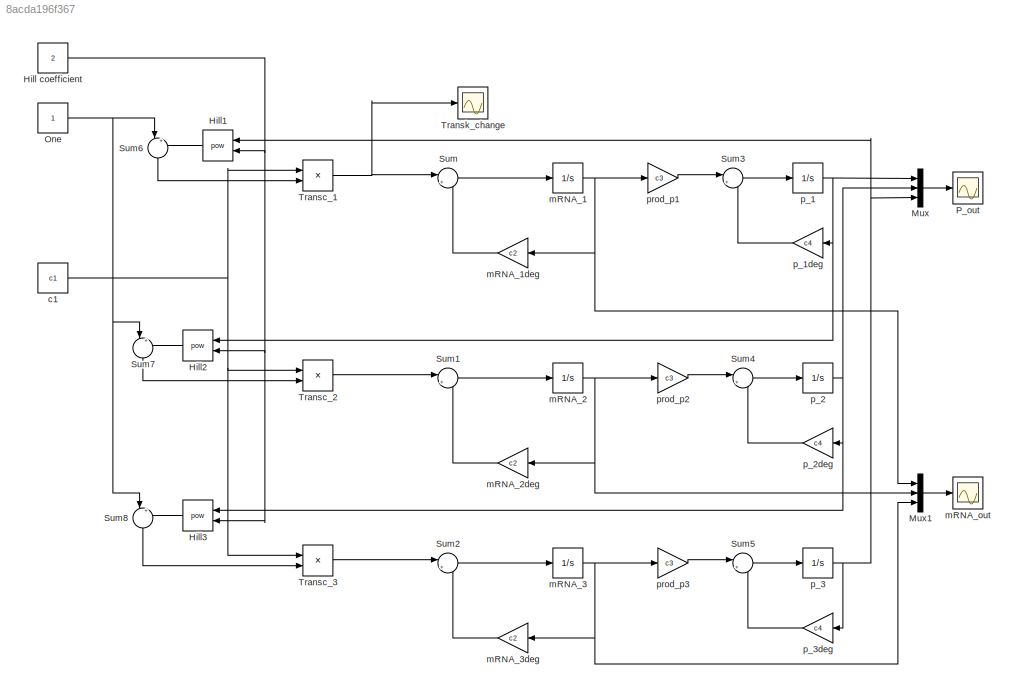
MODEL slx_8acda196f367
KIND model
BLOCK [Constant] Hill coefficient
  Value = 2
BLOCK [Math] Hill1
  Operator = pow
  Ports = [2, 1]
BLOCK [Math] Hill2
  Operator = pow
  Ports = [2, 1]
BLOCK [Math] Hill3
  Operator = pow
  Ports = [2, 1]
BLOCK [Mux] Mux
  DisplayOption = bar
  Inputs = 3
  Ports = [3, 1]
BLOCK [Mux] Mux1
  DisplayOption = bar
  Inputs = 3
  Ports = [3, 1]
BLOCK [Constant] One
BLOCK [Scope] P_out
  Floating = off
  LimitDataPoints = off
  NumInputPorts = 1
  Ports = [1]
  SampleTime = 0
  SaveName = P_out_ODE
  SaveToWorkspace = on
  ShowLegends = off
  ZoomMode = xonly
BLOCK [Sum] Sum
  IconShape = round
  InputSameDT = off
  Inputs = |+-
  OutDataTypeStr = Inherit: Inherit via internal rule
  Ports = [2, 1]
  SaturateOnIntegerOverflow = off
BLOCK [Sum] Sum1
  IconShape = round
  InputSameDT = off
  Inputs = |+-
  OutDataTypeStr = Inherit: Inherit via internal rule
  Ports = [2, 1]
  SaturateOnIntegerOverflow = off
BLOCK [Sum] Sum2
  IconShape = round
  InputSameDT = off
  Inputs = |+-
  OutDataTypeStr = Inherit: Inherit via internal rule
  Ports = [2, 1]
  SaturateOnIntegerOverflow = off
BLOCK [Sum] Sum3
  IconShape = round
  InputSameDT = off
  Inputs = |+-
  OutDataTypeStr = Inherit: Inherit via internal rule
  Ports = [2, 1]
  SaturateOnIntegerOverflow = off
BLOCK [Sum] Sum4
  IconShape = round
  InputSameDT = off
  Inputs = |+-
  OutDataTypeStr = Inherit: Inherit via internal rule
  Ports = [2, 1]
  SaturateOnIntegerOverflow = off
BLOCK [Sum] Sum5
  IconShape = round
  InputSameDT = off
  Inputs = |+-
  OutDataTypeStr = Inherit: Inherit via internal rule
  Ports = [2, 1]
  SaturateOnIntegerOverflow = off
BLOCK [Sum] Sum6
  IconShape = round
  InputSameDT = off
  Inputs = |++
  OutDataTypeStr = Inherit: Inherit via internal rule
  Ports = [2, 1]
  SaturateOnIntegerOverflow = off
BLOCK [Sum] Sum7
  IconShape = round
  InputSameDT = off
  Inputs = |++
  OutDataTypeStr = Inherit: Inherit via internal rule
  Ports = [2, 1]
  SaturateOnIntegerOverflow = off
BLOCK [Sum] Sum8
  IconShape = round
  InputSameDT = off
  Inputs = |++
  OutDataTypeStr = Inherit: Inherit via internal rule
  Ports = [2, 1]
  SaturateOnIntegerOverflow = off
BLOCK [Product] Transc_1
  InputSameDT = off
  Inputs = */
  OutDataTypeStr = Inherit: Inherit via internal rule
  Ports = [2, 1]
  RndMeth = Floor
  SaturateOnIntegerOverflow = off
BLOCK [Product] Transc_2
  InputSameDT = off
  Inputs = */
  OutDataTypeStr = Inherit: Inherit via internal rule
  Ports = [2, 1]
  RndMeth = Floor
  SaturateOnIntegerOverflow = off
BLOCK [Product] Transc_3
  InputSameDT = off
  Inputs = */
  OutDataTypeStr = Inherit: Inherit via internal rule
  Ports = [2, 1]
  RndMeth = Floor
  SaturateOnIntegerOverflow = off
BLOCK [Scope] Transk_change
  Floating = off
  LimitDataPoints = off
  NumInputPorts = 1
  Ports = [1]
  SampleTime = 0
  SaveName = P_out
  SaveToWorkspace = on
  ShowLegends = off
  ZoomMode = yonly
BLOCK [Constant] c1
  Value = c1
BLOCK [Integrator] mRNA_1
  InitialCondition = mRNA_init + 0.5
  Ports = [1, 1]
BLOCK [Gain] mRNA_1deg
  Gain = c2
  OutDataTypeStr = Inherit: Inherit via internal rule
  ParamDataTypeStr = Inherit: Inherit via internal rule
  SaturateOnIntegerOverflow = off
BLOCK [Integrator] mRNA_2
  InitialCondition = mRNA_init
  Ports = [1, 1]
BLOCK [Gain] mRNA_2deg
  Gain = c2
  OutDataTypeStr = Inherit: Inherit via internal rule
  ParamDataTypeStr = Inherit: Inherit via internal rule
  SaturateOnIntegerOverflow = off
BLOCK [Integrator] mRNA_3
  InitialCondition = mRNA_init
  Ports = [1, 1]
BLOCK [Gain] mRNA_3deg
  Gain = c2
  OutDataTypeStr = Inherit: Inherit via internal rule
  ParamDataTypeStr = Inherit: Inherit via internal rule
  SaturateOnIntegerOverflow = off
BLOCK [Scope] mRNA_out
  Floating = off
  LimitDataPoints = off
  NumInputPorts = 1
  Ports = [1]
  SampleTime = 0
  SaveName = mRNA_out_ODE
  SaveToWorkspace = on
  ShowLegends = off
  ZoomMode = xonly
BLOCK [Integrator] p_1
  Ports = [1, 1]
BLOCK [Gain] p_1deg
  Gain = c4
  OutDataTypeStr = Inherit: Inherit via internal rule
  ParamDataTypeStr = Inherit: Inherit via internal rule
  SaturateOnIntegerOverflow = off
BLOCK [Integrator] p_2
  Ports = [1, 1]
BLOCK [Gain] p_2deg
  Gain = c4
  OutDataTypeStr = Inherit: Inherit via internal rule
  ParamDataTypeStr = Inherit: Inherit via internal rule
  SaturateOnIntegerOverflow = off
BLOCK [Integrator] p_3
  Ports = [1, 1]
BLOCK [Gain] p_3deg
  Gain = c4
  OutDataTypeStr = Inherit: Inherit via internal rule
  ParamDataTypeStr = Inherit: Inherit via internal rule
  SaturateOnIntegerOverflow = off
BLOCK [Gain] prod_p1
  Gain = c3
  OutDataTypeStr = Inherit: Inherit via internal rule
  ParamDataTypeStr = Inherit: Inherit via internal rule
  SaturateOnIntegerOverflow = off
BLOCK [Gain] prod_p2
  Gain = c3
  OutDataTypeStr = Inherit: Inherit via internal rule
  ParamDataTypeStr = Inherit: Inherit via internal rule
  SaturateOnIntegerOverflow = off
BLOCK [Gain] prod_p3
  Gain = c3
  OutDataTypeStr = Inherit: Inherit via internal rule
  ParamDataTypeStr = Inherit: Inherit via internal rule
  SaturateOnIntegerOverflow = off
NET Hill coefficient:1 -> Hill1:2, Hill2:2, Hill3:2
LINE Hill1:1 -> Sum6:2
LINE Hill2:1 -> Sum7:2
LINE Hill3:1 -> Sum8:2
LINE Mux1:1 -> mRNA_out:1
LINE Mux:1 -> P_out:1
NET One:1 -> Sum6:1, Sum7:1, Sum8:1
LINE Sum1:1 -> mRNA_2:1
LINE Sum2:1 -> mRNA_3:1
LINE Sum3:1 -> p_1:1
LINE Sum4:1 -> p_2:1
LINE Sum5:1 -> p_3:1
LINE Sum6:1 -> Transc_1:2
LINE Sum7:1 -> Transc_2:2
LINE Sum8:1 -> Transc_3:2
LINE Sum:1 -> mRNA_1:1
NET Transc_1:1 -> Sum:1, Transk_change:1
LINE Transc_2:1 -> Sum1:1
LINE Transc_3:1 -> Sum2:1
NET c1:1 -> Transc_1:1, Transc_2:1, Transc_3:1
NET mRNA_1:1 -> Mux1:1, mRNA_1deg:1, prod_p1:1
LINE mRNA_1deg:1 -> Sum:2
NET mRNA_2:1 -> Mux1:2, mRNA_2deg:1, prod_p2:1
LINE mRNA_2deg:1 -> Sum1:2
NET mRNA_3:1 -> Mux1:3, mRNA_3deg:1, prod_p3:1
LINE mRNA_3deg:1 -> Sum2:2
NET p_1:1 -> Hill2:1, Mux:1, p_1deg:1
LINE p_1deg:1 -> Sum3:2
NET p_2:1 -> Hill3:1, Mux:2, p_2deg:1
LINE p_2deg:1 -> Sum4:2
NET p_3:1 -> Hill1:1, Mux:3, p_3deg:1
LINE p_3deg:1 -> Sum5:2
LINE prod_p1:1 -> Sum3:1
LINE prod_p2:1 -> Sum4:1
LINE prod_p3:1 -> Sum5:1
note: NET lines group one-source signal fan-out (src -> all destinations, sorted); 1:1 wires keep LINE
